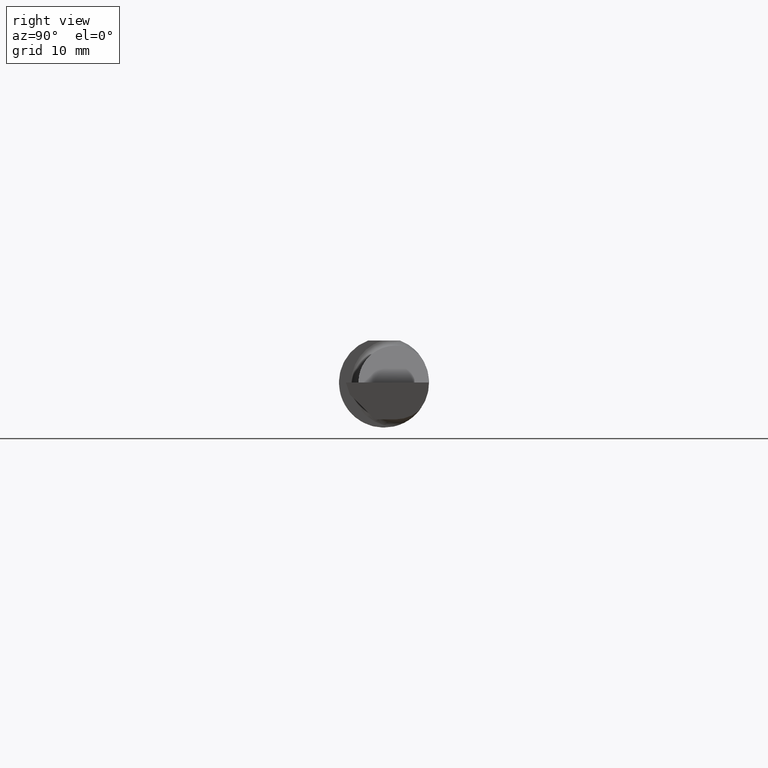
[diagram: clean part render]
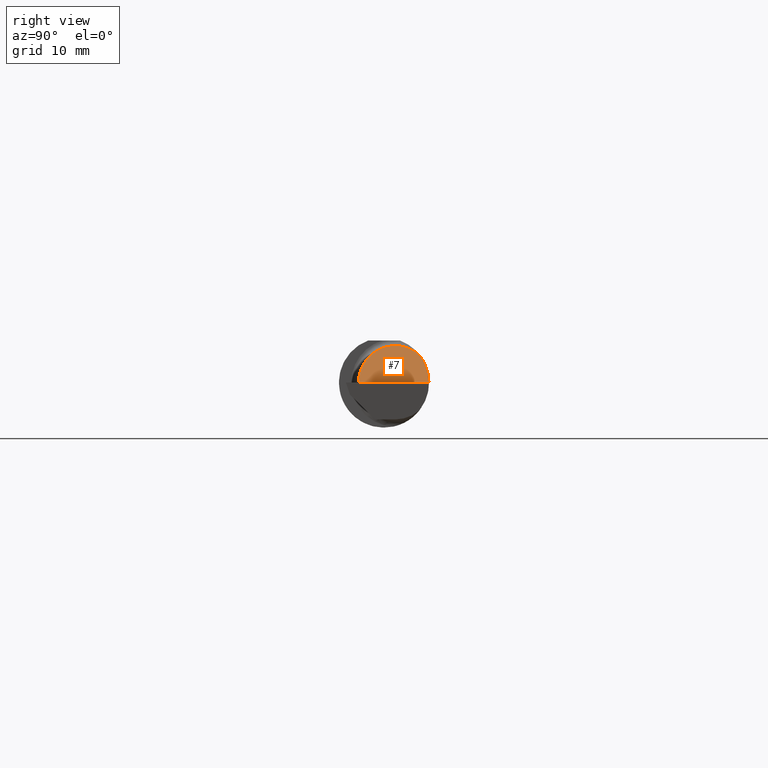
[diagram: same view with one face highlighted and labeled with its STEP entity id]
A machine part, right view. The second image highlights one B-rep face of the part: STEP entity #7.
In plain terms, the highlighted planar face has unit normal (-0.7071, 0, -0.7071).
Its self-contained STEP definition (entity closure, byte-faithful):
#7 = ADVANCED_FACE ( 'NONE', ( #297 ), #521, .F. ) ;
#11 = VERTEX_POINT ( 'NONE', #381 ) ;
#40 = VERTEX_POINT ( 'NONE', #656 ) ;
#43 = DIRECTION ( 'NONE',  ( -0.7071067811865442421, 0.000000000000000000, -0.7071067811865507924 ) ) ;
#61 = ORIENTED_EDGE ( 'NONE', *, *, #127, .T. ) ;
#111 = EDGE_CURVE ( 'NONE', #40, #123, #235, .T. ) ;
#123 = VERTEX_POINT ( 'NONE', #363 ) ;
#127 = EDGE_CURVE ( 'NONE', #11, #123, #217, .T. ) ;
#137 = EDGE_LOOP ( 'NONE', ( #347, #246, #61 ) ) ;
#153 = CARTESIAN_POINT ( 'NONE',  ( 2.020546539569985978, 0.02604885517094871969, 0.1794534604300119796 ) ) ;
#185 = DIRECTION ( 'NONE',  ( -0.000000000000000000, 1.000000000000000000, -0.000000000000000000 ) ) ;
#202 = CARTESIAN_POINT ( 'NONE',  ( 2.200000000000000178, -0.08890000000000010394, 9.797174393178826150E-17 ) ) ;
#217 = LINE ( 'NONE', #654, #699 ) ;
#222 = CARTESIAN_POINT ( 'NONE',  ( 2.130728481662469420, 0.1443546689866655186, 0.06927151833752984156 ) ) ;
#235 =( BOUNDED_CURVE ( )  B_SPLINE_CURVE ( 3, ( #368, #222, #441, #435 ),
 .UNSPECIFIED., .F., .F. ) 
 B_SPLINE_CURVE_WITH_KNOTS ( ( 4, 4 ),
 ( 0.8989658999765673952, 1.570796326794896336 ),
 .UNSPECIFIED. ) 
 CURVE ( )  GEOMETRIC_REPRESENTATION_ITEM ( )  RATIONAL_B_SPLINE_CURVE ( ( 1.000000000000000000, 0.9627393467969940222, 0.9627393467969940222, 1.000000000000000000 ) ) 
 REPRESENTATION_ITEM ( '' )  );
#246 = ORIENTED_EDGE ( 'NONE', *, *, #646, .T. ) ;
#255 =( BOUNDED_CURVE ( )  B_SPLINE_CURVE ( 3, ( #428, #153, #695, #202 ),
 .UNSPECIFIED., .F., .T. ) 
 B_SPLINE_CURVE_WITH_KNOTS ( ( 4, 4 ),
 ( 5.575169463880055076, 7.853981633974482790 ),
 .UNSPECIFIED. ) 
 CURVE ( )  GEOMETRIC_REPRESENTATION_ITEM ( )  RATIONAL_B_SPLINE_CURVE ( ( 1.000000000000000000, 0.6120893875309916243, 0.6120893875309916243, 1.000000000000000000 ) ) 
 REPRESENTATION_ITEM ( '' )  );
#259 = DIRECTION ( 'NONE',  ( -0.7071067811865507924, 0.000000000000000000, 0.7071067811865442421 ) ) ;
#297 = FACE_OUTER_BOUND ( 'NONE', #137, .T. ) ;
#323 = AXIS2_PLACEMENT_3D ( 'NONE', #530, #43, #259 ) ;
#347 = ORIENTED_EDGE ( 'NONE', *, *, #111, .F. ) ;
#363 = CARTESIAN_POINT ( 'NONE',  ( 2.200000000000000178, 0.1560999999999997667, 9.797174393178826150E-17 ) ) ;
#368 = CARTESIAN_POINT ( 'NONE',  ( 2.102840288866960616, 0.1221769230769238490, 0.09715971113303838169 ) ) ;
#381 = CARTESIAN_POINT ( 'NONE',  ( 2.200000000000000178, -0.08890000000000010394, 9.797174393178826150E-17 ) ) ;
#428 = CARTESIAN_POINT ( 'NONE',  ( 2.102840288866960616, 0.1221769230769238490, 0.09715971113303838169 ) ) ;
#435 = CARTESIAN_POINT ( 'NONE',  ( 2.200000000000000178, 0.1560999999999997667, 9.797174393178826150E-17 ) ) ;
#441 = CARTESIAN_POINT ( 'NONE',  ( 2.164368501139629863, 0.1560999999999999888, 0.03563149886036958564 ) ) ;
#521 = PLANE ( 'NONE',  #323 ) ;
#530 = CARTESIAN_POINT ( 'NONE',  ( 2.200000000000000178, -0.2500000000000000555, 9.797174393178826150E-17 ) ) ;
#646 = EDGE_CURVE ( 'NONE', #40, #11, #255, .T. ) ;
#654 = CARTESIAN_POINT ( 'NONE',  ( 2.200000000000000178, -0.2500000000000000555, 9.797174393178826150E-17 ) ) ;
#656 = CARTESIAN_POINT ( 'NONE',  ( 2.102840288866960616, 0.1221769230769238490, 0.09715971113303838169 ) ) ;
#695 = CARTESIAN_POINT ( 'NONE',  ( 2.073458044061706307, -0.08890000000000002067, 0.1265419559382931769 ) ) ;
#699 = VECTOR ( 'NONE', #185, 39.37007874015748143 ) ;